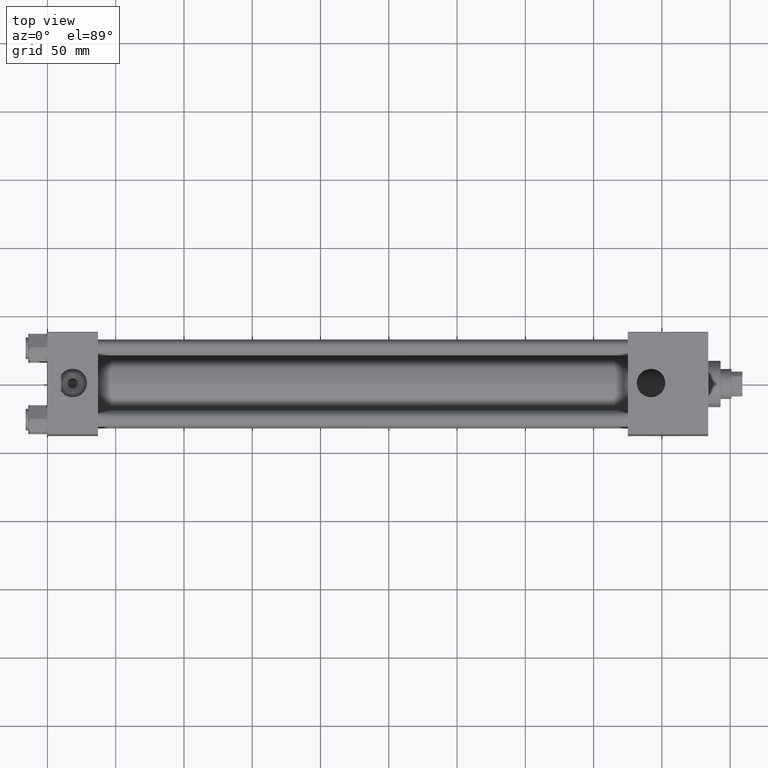
[diagram: clean part render]
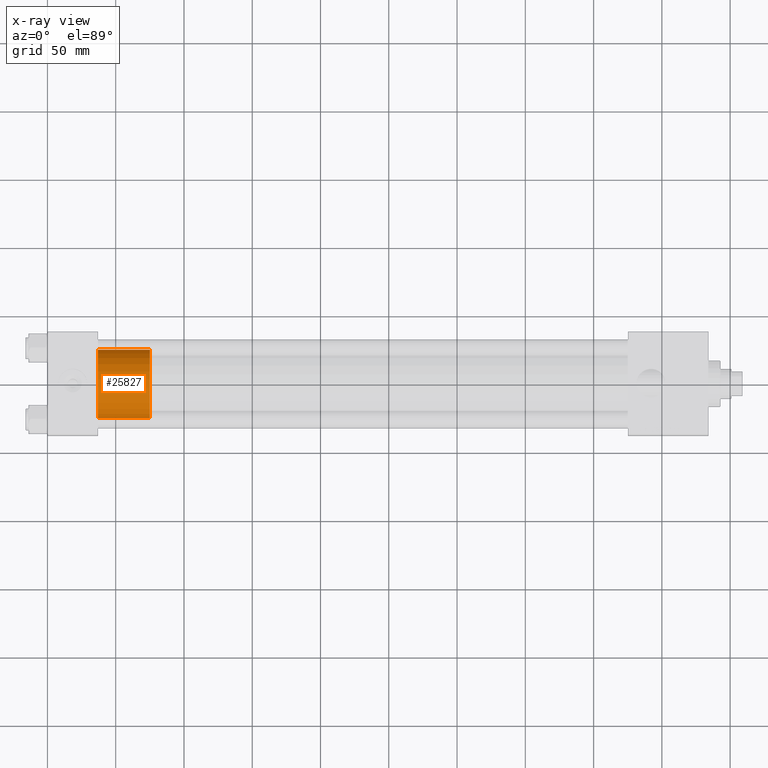
[diagram: x-ray — body ghosted, one internal face saturated and labeled with its STEP entity id]
A machine part, top view, then the same camera in x-ray: the body is ghosted and one INTERNAL B-rep face — a face not visible from any outside direction — is saturated and labeled: STEP entity #25827.
In plain terms, the highlighted cylindrical surface (edge-blend (fillet) strip) has radius 25 mm, axis along (-1, 0, 0).
Its self-contained STEP definition (entity closure, byte-faithful):
#336 = ORIENTED_EDGE ( 'NONE', *, *, #7210, .F. ) ;
#3643 = AXIS2_PLACEMENT_3D ( 'NONE', #27738, #28736, #8941 ) ;
#6057 = DIRECTION ( 'NONE',  ( 1.000000000000000000, 0.000000000000000000, 0.000000000000000000 ) ) ;
#6106 = AXIS2_PLACEMENT_3D ( 'NONE', #48317, #36620, #43744 ) ;
#7210 = EDGE_CURVE ( 'NONE', #41227, #22147, #14140, .T. ) ;
#8941 = DIRECTION ( 'NONE',  ( -1.000000000000000000, 0.000000000000000000, 0.000000000000000000 ) ) ;
#10378 = VERTEX_POINT ( 'NONE', #28251 ) ;
#10858 = CARTESIAN_POINT ( 'NONE',  ( 0.000000000000000000, 0.000000000000000000, 38.00000000000000000 ) ) ;
#11766 = CIRCLE ( 'NONE', #6106, 25.00000000000000000 ) ;
#14140 = LINE ( 'NONE', #14886, #17354 ) ;
#14886 = CARTESIAN_POINT ( 'NONE',  ( 25.00000000000000000, 3.061616997868383043E-15, 38.00000000000000000 ) ) ;
#17354 = VECTOR ( 'NONE', #18429, 1000.000000000000000 ) ;
#17882 = CIRCLE ( 'NONE', #44759, 25.00000000000000000 ) ;
#18157 = LINE ( 'NONE', #29103, #45739 ) ;
#18429 = DIRECTION ( 'NONE',  ( -0.000000000000000000, -0.000000000000000000, -1.000000000000000000 ) ) ;
#19860 = CYLINDRICAL_SURFACE ( 'NONE', #3643, 25.00000000000000000 ) ;
#20095 = ORIENTED_EDGE ( 'NONE', *, *, #24732, .T. ) ;
#22147 = VERTEX_POINT ( 'NONE', #42011 ) ;
#24732 = EDGE_CURVE ( 'NONE', #10378, #45455, #18157, .T. ) ;
#25827 = ADVANCED_FACE ( 'NONE', ( #32541 ), #19860, .T. ) ;
#27184 = EDGE_CURVE ( 'NONE', #45455, #22147, #11766, .T. ) ;
#27738 = CARTESIAN_POINT ( 'NONE',  ( 0.000000000000000000, 0.000000000000000000, 38.00000000000000000 ) ) ;
#28251 = CARTESIAN_POINT ( 'NONE',  ( -25.00000000000000000, 0.000000000000000000, 38.00000000000000000 ) ) ;
#28736 = DIRECTION ( 'NONE',  ( -0.000000000000000000, -0.000000000000000000, -1.000000000000000000 ) ) ;
#29103 = CARTESIAN_POINT ( 'NONE',  ( -25.00000000000000000, 0.000000000000000000, 38.00000000000000000 ) ) ;
#29643 = CARTESIAN_POINT ( 'NONE',  ( 25.00000000000000000, 3.061616997868383043E-15, 38.00000000000000000 ) ) ;
#31163 = ORIENTED_EDGE ( 'NONE', *, *, #27184, .T. ) ;
#32541 = FACE_OUTER_BOUND ( 'NONE', #37835, .T. ) ;
#36329 = ORIENTED_EDGE ( 'NONE', *, *, #49244, .F. ) ;
#36620 = DIRECTION ( 'NONE',  ( 0.000000000000000000, 0.000000000000000000, 1.000000000000000000 ) ) ;
#37835 = EDGE_LOOP ( 'NONE', ( #336, #36329, #20095, #31163 ) ) ;
#41227 = VERTEX_POINT ( 'NONE', #29643 ) ;
#41764 = DIRECTION ( 'NONE',  ( -0.000000000000000000, -0.000000000000000000, -1.000000000000000000 ) ) ;
#42011 = CARTESIAN_POINT ( 'NONE',  ( 25.00000000000000000, 3.061616997868383043E-15, 0.000000000000000000 ) ) ;
#43744 = DIRECTION ( 'NONE',  ( 1.000000000000000000, 0.000000000000000000, 0.000000000000000000 ) ) ;
#44649 = CARTESIAN_POINT ( 'NONE',  ( -25.00000000000000000, 0.000000000000000000, 0.000000000000000000 ) ) ;
#44759 = AXIS2_PLACEMENT_3D ( 'NONE', #10858, #48689, #6057 ) ;
#45455 = VERTEX_POINT ( 'NONE', #44649 ) ;
#45739 = VECTOR ( 'NONE', #41764, 1000.000000000000000 ) ;
#48317 = CARTESIAN_POINT ( 'NONE',  ( 0.000000000000000000, 0.000000000000000000, 0.000000000000000000 ) ) ;
#48689 = DIRECTION ( 'NONE',  ( 0.000000000000000000, 0.000000000000000000, 1.000000000000000000 ) ) ;
#49244 = EDGE_CURVE ( 'NONE', #10378, #41227, #17882, .T. ) ;